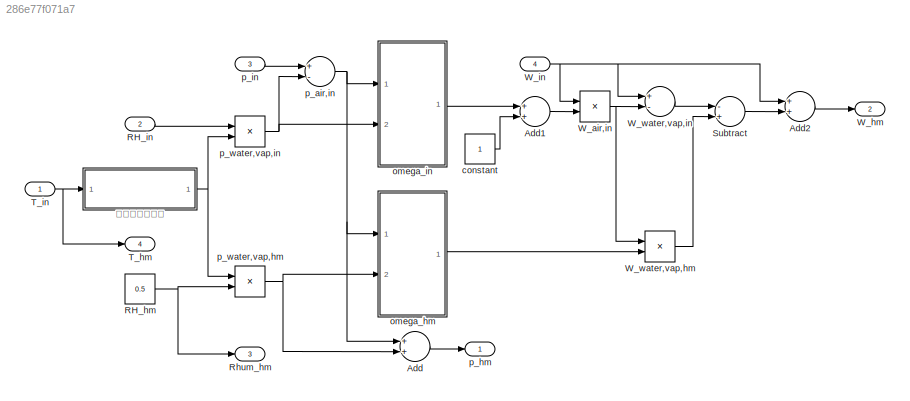
MODEL slx_286e77f071a7
KIND model
BLOCK [Sum] Add
  InputSameDT = off
  OutDataTypeStr = Inherit: Inherit via internal rule
  Ports = [2, 1]
  SaturateOnIntegerOverflow = off
BLOCK [Sum] Add1
  InputSameDT = off
  OutDataTypeStr = Inherit: Inherit via internal rule
  Ports = [2, 1]
  SaturateOnIntegerOverflow = off
BLOCK [Sum] Add2
  InputSameDT = off
  OutDataTypeStr = Inherit: Inherit via internal rule
  Ports = [2, 1]
  SaturateOnIntegerOverflow = off
BLOCK [Constant] RH_hm
  Value = 0.5
BLOCK [Inport] RH_in
  IconDisplay = Port number
  Port = 2
BLOCK [Outport] Rhum_hm
  IconDisplay = Port number
  Port = 3
BLOCK [Sum] Subtract
  InputSameDT = off
  Inputs = -+
  OutDataTypeStr = Inherit: Inherit via internal rule
  Ports = [2, 1]
  SaturateOnIntegerOverflow = off
BLOCK [Outport] T_hm
  IconDisplay = Port number
  Port = 4
BLOCK [Inport] T_in
  IconDisplay = Port number
BLOCK [Product] W_air,in
  InputSameDT = off
  Inputs = */
  OutDataTypeStr = Inherit: Inherit via internal rule
  Ports = [2, 1]
  RndMeth = Floor
  SaturateOnIntegerOverflow = off
BLOCK [Outport] W_hm
  IconDisplay = Port number
  Port = 2
BLOCK [Inport] W_in
  IconDisplay = Port number
  Port = 4
BLOCK [Product] W_water,vap,hm
  InputSameDT = off
  OutDataTypeStr = Inherit: Inherit via internal rule
  Ports = [2, 1]
  RndMeth = Floor
  SaturateOnIntegerOverflow = off
BLOCK [Sum] W_water,vap,in
  InputSameDT = off
  Inputs = +-
  OutDataTypeStr = Inherit: Inherit via internal rule
  Ports = [2, 1]
  SaturateOnIntegerOverflow = off
BLOCK [Constant] constant 
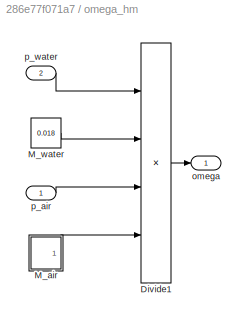
BLOCK [SubSystem] omega_hm
  Ports = [2, 1]
  RequestExecContextInheritance = off
BLOCK [Product] omega_hm/Divide1
  InputSameDT = off
  Inputs = **//
  OutDataTypeStr = Inherit: Inherit via internal rule
  Ports = [4, 1]
  RndMeth = Floor
  SaturateOnIntegerOverflow = off
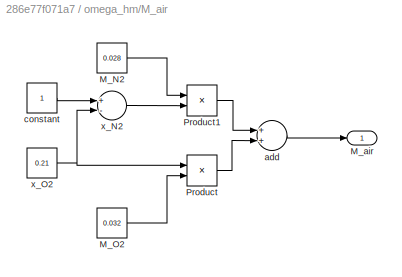
BLOCK [SubSystem] omega_hm/M_air
  Ports = [0, 1]
  RequestExecContextInheritance = off
BLOCK [Constant] omega_hm/M_air/M_N2
  Value = 0.028
BLOCK [Constant] omega_hm/M_air/M_O2
  Value = 0.032
BLOCK [Outport] omega_hm/M_air/M_air
  IconDisplay = Port number
BLOCK [Product] omega_hm/M_air/Product
  InputSameDT = off
  OutDataTypeStr = Inherit: Inherit via internal rule
  Ports = [2, 1]
  RndMeth = Floor
  SaturateOnIntegerOverflow = off
BLOCK [Product] omega_hm/M_air/Product1
  InputSameDT = off
  OutDataTypeStr = Inherit: Inherit via internal rule
  Ports = [2, 1]
  RndMeth = Floor
  SaturateOnIntegerOverflow = off
BLOCK [Sum] omega_hm/M_air/add
  InputSameDT = off
  OutDataTypeStr = Inherit: Inherit via internal rule
  Ports = [2, 1]
  SaturateOnIntegerOverflow = off
BLOCK [Constant] omega_hm/M_air/constant
BLOCK [Sum] omega_hm/M_air/x_N2
  InputSameDT = off
  Inputs = +-
  OutDataTypeStr = Inherit: Inherit via internal rule
  Ports = [2, 1]
  SaturateOnIntegerOverflow = off
BLOCK [Constant] omega_hm/M_air/x_O2
  Value = 0.21
BLOCK [Constant] omega_hm/M_water
  Value = 0.018
BLOCK [Outport] omega_hm/omega
  IconDisplay = Port number
BLOCK [Inport] omega_hm/p_air
  IconDisplay = Port number
BLOCK [Inport] omega_hm/p_water
  IconDisplay = Port number
  Port = 2
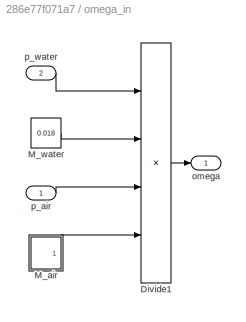
BLOCK [SubSystem] omega_in
  Ports = [2, 1]
  RequestExecContextInheritance = off
BLOCK [Product] omega_in/Divide1
  InputSameDT = off
  Inputs = **//
  OutDataTypeStr = Inherit: Inherit via internal rule
  Ports = [4, 1]
  RndMeth = Floor
  SaturateOnIntegerOverflow = off
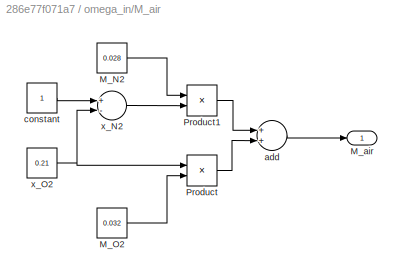
BLOCK [SubSystem] omega_in/M_air
  Ports = [0, 1]
  RequestExecContextInheritance = off
BLOCK [Constant] omega_in/M_air/M_N2
  Value = 0.028
BLOCK [Constant] omega_in/M_air/M_O2
  Value = 0.032
BLOCK [Outport] omega_in/M_air/M_air
  IconDisplay = Port number
BLOCK [Product] omega_in/M_air/Product
  InputSameDT = off
  OutDataTypeStr = Inherit: Inherit via internal rule
  Ports = [2, 1]
  RndMeth = Floor
  SaturateOnIntegerOverflow = off
BLOCK [Product] omega_in/M_air/Product1
  InputSameDT = off
  OutDataTypeStr = Inherit: Inherit via internal rule
  Ports = [2, 1]
  RndMeth = Floor
  SaturateOnIntegerOverflow = off
BLOCK [Sum] omega_in/M_air/add
  InputSameDT = off
  OutDataTypeStr = Inherit: Inherit via internal rule
  Ports = [2, 1]
  SaturateOnIntegerOverflow = off
BLOCK [Constant] omega_in/M_air/constant
BLOCK [Sum] omega_in/M_air/x_N2
  InputSameDT = off
  Inputs = +-
  OutDataTypeStr = Inherit: Inherit via internal rule
  Ports = [2, 1]
  SaturateOnIntegerOverflow = off
BLOCK [Constant] omega_in/M_air/x_O2
  Value = 0.21
BLOCK [Constant] omega_in/M_water
  Value = 0.018
BLOCK [Outport] omega_in/omega
  IconDisplay = Port number
BLOCK [Inport] omega_in/p_air
  IconDisplay = Port number
BLOCK [Inport] omega_in/p_water
  IconDisplay = Port number
  Port = 2
BLOCK [Sum] p_air,in
  InputSameDT = off
  Inputs = +-
  OutDataTypeStr = Inherit: Inherit via internal rule
  Ports = [2, 1]
  SaturateOnIntegerOverflow = off
BLOCK [Outport] p_hm
  IconDisplay = Port number
BLOCK [Inport] p_in
  IconDisplay = Port number
  Port = 3
BLOCK [Product] p_water,vap,hm
  InputSameDT = off
  OutDataTypeStr = Inherit: Inherit via internal rule
  Ports = [2, 1]
  RndMeth = Floor
  SaturateOnIntegerOverflow = off
BLOCK [Product] p_water,vap,in
  InputSameDT = off
  OutDataTypeStr = Inherit: Inherit via internal rule
  Ports = [2, 1]
  RndMeth = Floor
  SaturateOnIntegerOverflow = off
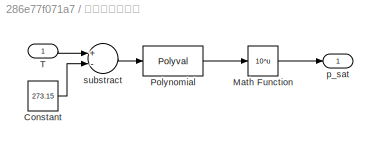
BLOCK [SubSystem] 饱和水蒸气压力
  Ports = [1, 1]
  RequestExecContextInheritance = off
BLOCK [Constant] 饱和水蒸气压力/Constant
  Value = 273.15
BLOCK [Math] 饱和水蒸气压力/Math Function
  Operator = 10^u
  Ports = [1, 1]
BLOCK [Polyval] 饱和水蒸气压力/Polynomial
  Coefs = [1.4454e-7,-9.1837e-5,0.2953,-2.1794]
BLOCK [Inport] 饱和水蒸气压力/T
  IconDisplay = Port number
BLOCK [Outport] 饱和水蒸气压力/p_sat
  IconDisplay = Port number
BLOCK [Sum] 饱和水蒸气压力/substract
  InputSameDT = off
  Inputs = +-
  OutDataTypeStr = Inherit: Inherit via internal rule
  Ports = [2, 1]
  SaturateOnIntegerOverflow = off
LINE Add1:1 -> W_air,in:2
LINE Add2:1 -> W_hm:1
LINE Add:1 -> p_hm:1
NET RH_hm:1 -> Rhum_hm:1, p_water,vap,hm:2
LINE RH_in:1 -> p_water,vap,in:1
LINE Subtract:1 -> Add2:2
NET T_in:1 -> T_hm:1, 饱和水蒸气压力:1
NET W_air,in:1 -> W_water,vap,hm:1, W_water,vap,in:2
NET W_in:1 -> Add2:1, W_air,in:1, W_water,vap,in:1
LINE W_water,vap,hm:1 -> Subtract:2
LINE W_water,vap,in:1 -> Subtract:1
LINE constant :1 -> Add1:2
LINE omega_hm/Divide1:1 -> omega_hm/omega:1
LINE omega_hm/M_air/M_N2:1 -> omega_hm/M_air/Product1:1
LINE omega_hm/M_air/M_O2:1 -> omega_hm/M_air/Product:2
LINE omega_hm/M_air/Product1:1 -> omega_hm/M_air/add:1
LINE omega_hm/M_air/Product:1 -> omega_hm/M_air/add:2
LINE omega_hm/M_air/add:1 -> omega_hm/M_air/M_air:1
LINE omega_hm/M_air/constant:1 -> omega_hm/M_air/x_N2:1
LINE omega_hm/M_air/x_N2:1 -> omega_hm/M_air/Product1:2
NET omega_hm/M_air/x_O2:1 -> omega_hm/M_air/Product:1, omega_hm/M_air/x_N2:2
LINE omega_hm/M_air:1 -> omega_hm/Divide1:4
LINE omega_hm/M_water:1 -> omega_hm/Divide1:2
LINE omega_hm/p_air:1 -> omega_hm/Divide1:3
LINE omega_hm/p_water:1 -> omega_hm/Divide1:1
LINE omega_hm:1 -> W_water,vap,hm:2
LINE omega_in/Divide1:1 -> omega_in/omega:1
LINE omega_in/M_air/M_N2:1 -> omega_in/M_air/Product1:1
LINE omega_in/M_air/M_O2:1 -> omega_in/M_air/Product:2
LINE omega_in/M_air/Product1:1 -> omega_in/M_air/add:1
LINE omega_in/M_air/Product:1 -> omega_in/M_air/add:2
LINE omega_in/M_air/add:1 -> omega_in/M_air/M_air:1
LINE omega_in/M_air/constant:1 -> omega_in/M_air/x_N2:1
LINE omega_in/M_air/x_N2:1 -> omega_in/M_air/Product1:2
NET omega_in/M_air/x_O2:1 -> omega_in/M_air/Product:1, omega_in/M_air/x_N2:2
LINE omega_in/M_air:1 -> omega_in/Divide1:4
LINE omega_in/M_water:1 -> omega_in/Divide1:2
LINE omega_in/p_air:1 -> omega_in/Divide1:3
LINE omega_in/p_water:1 -> omega_in/Divide1:1
LINE omega_in:1 -> Add1:1
NET p_air,in:1 -> Add:1, omega_hm:1, omega_in:1
LINE p_in:1 -> p_air,in:1
NET p_water,vap,hm:1 -> Add:2, omega_hm:2
NET p_water,vap,in:1 -> omega_in:2, p_air,in:2
LINE 饱和水蒸气压力/Constant:1 -> 饱和水蒸气压力/substract:2
LINE 饱和水蒸气压力/Math Function:1 -> 饱和水蒸气压力/p_sat:1
LINE 饱和水蒸气压力/Polynomial:1 -> 饱和水蒸气压力/Math Function:1
LINE 饱和水蒸气压力/T:1 -> 饱和水蒸气压力/substract:1
LINE 饱和水蒸气压力/substract:1 -> 饱和水蒸气压力/Polynomial:1
NET 饱和水蒸气压力:1 -> p_water,vap,hm:1, p_water,vap,in:2
note: NET lines group one-source signal fan-out (src -> all destinations, sorted); 1:1 wires keep LINE
